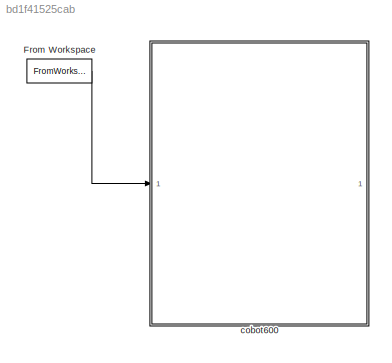
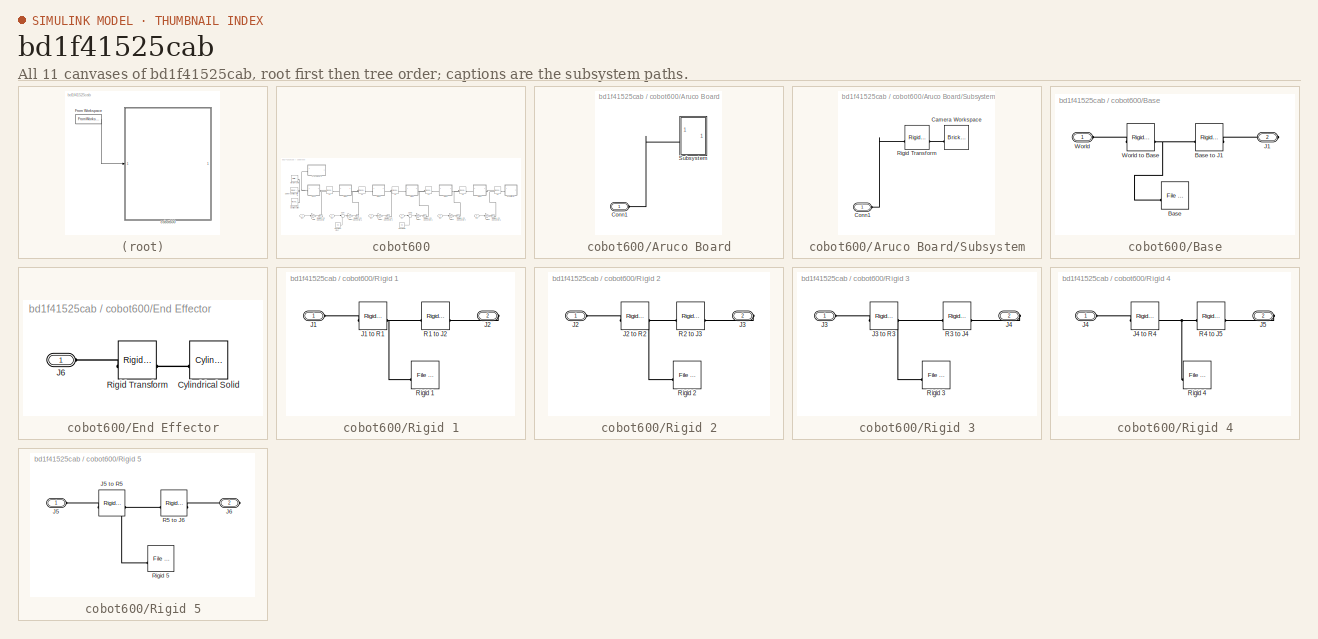
[diagram: thumbnail index - all 11 canvases of the model, root first then tree order]
MODEL slx_bd1f41525cab
KIND model
CONFIG AbsTol = auto
CONFIG EnableMultiTasking = off
CONFIG FixedStep = auto
CONFIG MaxStep = auto
CONFIG MinStep = auto
CONFIG RelTol = 1e-3
CONFIG SampleTimeConstraint = Unconstrained
CONFIG SolverName = VariableStepAuto
CONFIG StartTime = 0.0
CONFIG StopTime = 20
BLOCK [FromWorkspace] From Workspace
  VariableName = simin
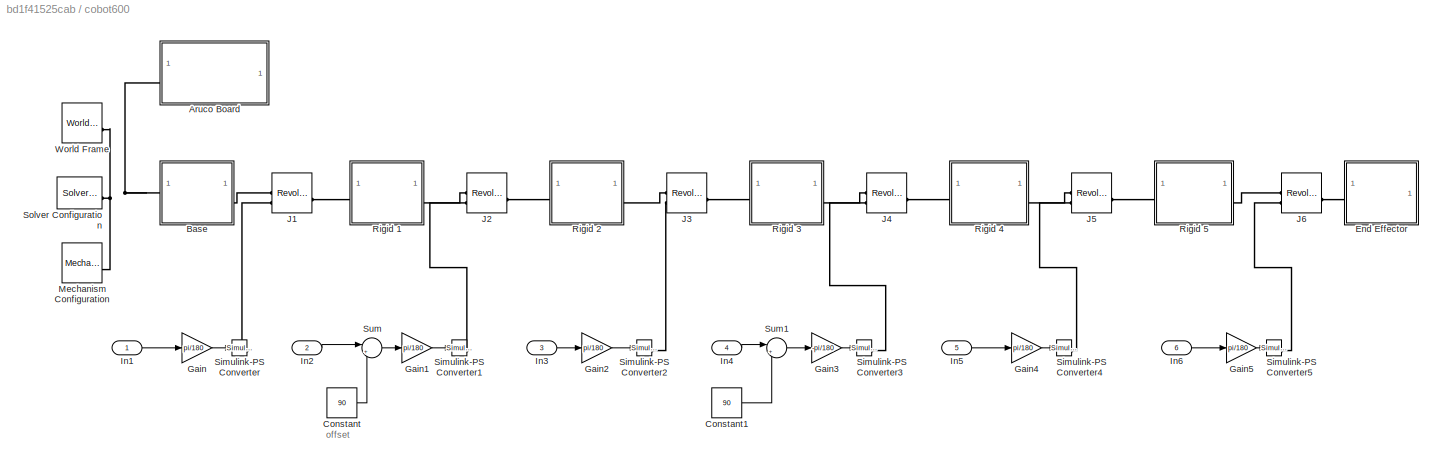
BLOCK [SubSystem] cobot600
BLOCK [SubSystem] cobot600/Aruco Board
BLOCK [PMIOPort] cobot600/Aruco Board/Conn1
  Side = Left
BLOCK [SubSystem] cobot600/Aruco Board/Subsystem
BLOCK [Reference] cobot600/Aruco Board/Subsystem/Camera Workspace  REF=sm_lib/Body Elements/Brick Solid
  SourceBlock = sm_lib/Body Elements/Brick Solid
  SourceType = Brick Solid
BLOCK [PMIOPort] cobot600/Aruco Board/Subsystem/Conn1
  Side = Left
BLOCK [Reference] cobot600/Aruco Board/Subsystem/Rigid Transform  REF=sm_lib/Frames and
Transforms/Rigid
Transform
  SourceBlock = sm_lib/Frames and\nTransforms/Rigid\nTransform
  SourceType = Rigid\nTransform
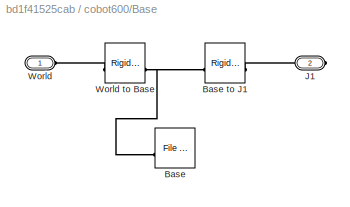
BLOCK [SubSystem] cobot600/Base
BLOCK [Reference] cobot600/Base/Base  REF=sm_lib/Body Elements/File Solid
  SourceBlock = sm_lib/Body Elements/File Solid
  SourceType = File Solid
BLOCK [Reference] cobot600/Base/Base to J1  REF=sm_lib/Frames and
Transforms/Rigid
Transform
  SourceBlock = sm_lib/Frames and\nTransforms/Rigid\nTransform
  SourceType = Rigid\nTransform
BLOCK [PMIOPort] cobot600/Base/J1
  Port = 2
  Side = Right
BLOCK [PMIOPort] cobot600/Base/World
  Side = Left
BLOCK [Reference] cobot600/Base/World to Base  REF=sm_lib/Frames and
Transforms/Rigid
Transform
  SourceBlock = sm_lib/Frames and\nTransforms/Rigid\nTransform
  SourceType = Rigid\nTransform
BLOCK [Constant] cobot600/Constant
  Value = 90
BLOCK [Constant] cobot600/Constant1
  Value = 90
BLOCK [SubSystem] cobot600/End Effector
BLOCK [Reference] cobot600/End Effector/Cylindrical Solid  REF=sm_lib/Body Elements/Cylindrical Solid
  SourceBlock = sm_lib/Body Elements/Cylindrical Solid
  SourceType = Cylindrical Solid
BLOCK [PMIOPort] cobot600/End Effector/J6
  Side = Left
BLOCK [Reference] cobot600/End Effector/Rigid Transform  REF=sm_lib/Frames and
Transforms/Rigid
Transform
  SourceBlock = sm_lib/Frames and\nTransforms/Rigid\nTransform
  SourceType = Rigid\nTransform
BLOCK [Gain] cobot600/Gain
  Gain = pi/180
BLOCK [Gain] cobot600/Gain1
  Gain = pi/180
BLOCK [Gain] cobot600/Gain2
  Gain = pi/180
BLOCK [Gain] cobot600/Gain3
  Gain = -pi/180
BLOCK [Gain] cobot600/Gain4
  Gain = pi/180
BLOCK [Gain] cobot600/Gain5
  Gain = pi/180
BLOCK [Inport] cobot600/In1
BLOCK [Inport] cobot600/In2
  Port = 2
BLOCK [Inport] cobot600/In3
  Port = 3
BLOCK [Inport] cobot600/In4
  Port = 4
BLOCK [Inport] cobot600/In5
  Port = 5
BLOCK [Inport] cobot600/In6
  Port = 6
BLOCK [Reference] cobot600/J1  REF=sm_lib/Joints/Revolute Joint
  SourceBlock = sm_lib/Joints/Revolute Joint
  SourceType = Revolute Joint
BLOCK [Reference] cobot600/J2  REF=sm_lib/Joints/Revolute Joint
  SourceBlock = sm_lib/Joints/Revolute Joint
  SourceType = Revolute Joint
BLOCK [Reference] cobot600/J3  REF=sm_lib/Joints/Revolute Joint
  SourceBlock = sm_lib/Joints/Revolute Joint
  SourceType = Revolute Joint
BLOCK [Reference] cobot600/J4  REF=sm_lib/Joints/Revolute Joint
  SourceBlock = sm_lib/Joints/Revolute Joint
  SourceType = Revolute Joint
BLOCK [Reference] cobot600/J5  REF=sm_lib/Joints/Revolute Joint
  SourceBlock = sm_lib/Joints/Revolute Joint
  SourceType = Revolute Joint
BLOCK [Reference] cobot600/J6  REF=sm_lib/Joints/Revolute Joint
  SourceBlock = sm_lib/Joints/Revolute Joint
  SourceType = Revolute Joint
BLOCK [Reference] cobot600/Mechanism Configuration  REF=sm_lib/Utilities/Mechanism
Configuration
  SourceBlock = sm_lib/Utilities/Mechanism\nConfiguration
  SourceType = Mechanism\nConfiguration
BLOCK [SubSystem] cobot600/Rigid 1
BLOCK [PMIOPort] cobot600/Rigid 1/J1
  Side = Left
BLOCK [Reference] cobot600/Rigid 1/J1 to R1  REF=sm_lib/Frames and
Transforms/Rigid
Transform
  SourceBlock = sm_lib/Frames and\nTransforms/Rigid\nTransform
  SourceType = Rigid\nTransform
BLOCK [PMIOPort] cobot600/Rigid 1/J2
  Port = 2
  Side = Right
BLOCK [Reference] cobot600/Rigid 1/R1 to J2  REF=sm_lib/Frames and
Transforms/Rigid
Transform
  SourceBlock = sm_lib/Frames and\nTransforms/Rigid\nTransform
  SourceType = Rigid\nTransform
BLOCK [Reference] cobot600/Rigid 1/Rigid 1  REF=sm_lib/Body Elements/File Solid
  SourceBlock = sm_lib/Body Elements/File Solid
  SourceType = File Solid
BLOCK [SubSystem] cobot600/Rigid 2
BLOCK [PMIOPort] cobot600/Rigid 2/J2
  Side = Left
BLOCK [Reference] cobot600/Rigid 2/J2 to R2  REF=sm_lib/Frames and
Transforms/Rigid
Transform
  SourceBlock = sm_lib/Frames and\nTransforms/Rigid\nTransform
  SourceType = Rigid\nTransform
BLOCK [PMIOPort] cobot600/Rigid 2/J3
  Port = 2
  Side = Right
BLOCK [Reference] cobot600/Rigid 2/R2 to J3  REF=sm_lib/Frames and
Transforms/Rigid
Transform
  SourceBlock = sm_lib/Frames and\nTransforms/Rigid\nTransform
  SourceType = Rigid\nTransform
BLOCK [Reference] cobot600/Rigid 2/Rigid 2  REF=sm_lib/Body Elements/File Solid
  SourceBlock = sm_lib/Body Elements/File Solid
  SourceType = File Solid
BLOCK [SubSystem] cobot600/Rigid 3
BLOCK [PMIOPort] cobot600/Rigid 3/J3
  Side = Left
BLOCK [Reference] cobot600/Rigid 3/J3 to R3  REF=sm_lib/Frames and
Transforms/Rigid
Transform
  SourceBlock = sm_lib/Frames and\nTransforms/Rigid\nTransform
  SourceType = Rigid\nTransform
BLOCK [PMIOPort] cobot600/Rigid 3/J4
  Port = 2
  Side = Right
BLOCK [Reference] cobot600/Rigid 3/R3 to J4  REF=sm_lib/Frames and
Transforms/Rigid
Transform
  SourceBlock = sm_lib/Frames and\nTransforms/Rigid\nTransform
  SourceType = Rigid\nTransform
BLOCK [Reference] cobot600/Rigid 3/Rigid 3  REF=sm_lib/Body Elements/File Solid
  SourceBlock = sm_lib/Body Elements/File Solid
  SourceType = File Solid
BLOCK [SubSystem] cobot600/Rigid 4
BLOCK [PMIOPort] cobot600/Rigid 4/J4
  Side = Left
BLOCK [Reference] cobot600/Rigid 4/J4 to R4  REF=sm_lib/Frames and
Transforms/Rigid
Transform
  SourceBlock = sm_lib/Frames and\nTransforms/Rigid\nTransform
  SourceType = Rigid\nTransform
BLOCK [PMIOPort] cobot600/Rigid 4/J5
  Port = 2
  Side = Right
BLOCK [Reference] cobot600/Rigid 4/R4 to J5  REF=sm_lib/Frames and
Transforms/Rigid
Transform
  SourceBlock = sm_lib/Frames and\nTransforms/Rigid\nTransform
  SourceType = Rigid\nTransform
BLOCK [Reference] cobot600/Rigid 4/Rigid 4  REF=sm_lib/Body Elements/File Solid
  SourceBlock = sm_lib/Body Elements/File Solid
  SourceType = File Solid
BLOCK [SubSystem] cobot600/Rigid 5
BLOCK [PMIOPort] cobot600/Rigid 5/J5
  Side = Left
BLOCK [Reference] cobot600/Rigid 5/J5 to R5  REF=sm_lib/Frames and
Transforms/Rigid
Transform
  SourceBlock = sm_lib/Frames and\nTransforms/Rigid\nTransform
  SourceType = Rigid\nTransform
BLOCK [PMIOPort] cobot600/Rigid 5/J6
  Port = 2
  Side = Right
BLOCK [Reference] cobot600/Rigid 5/R5 to J6  REF=sm_lib/Frames and
Transforms/Rigid
Transform
  SourceBlock = sm_lib/Frames and\nTransforms/Rigid\nTransform
  SourceType = Rigid\nTransform
BLOCK [Reference] cobot600/Rigid 5/Rigid 5  REF=sm_lib/Body Elements/File Solid
  SourceBlock = sm_lib/Body Elements/File Solid
  SourceType = File Solid
BLOCK [Reference] cobot600/Simulink-PS Converter  REF=nesl_utility/Simulink-PS
Converter
  SourceBlock = nesl_utility/Simulink-PS\nConverter
  SourceType = Simulink-PS\nConverter
BLOCK [Reference] cobot600/Simulink-PS Converter1  REF=nesl_utility/Simulink-PS
Converter
  SourceBlock = nesl_utility/Simulink-PS\nConverter
  SourceType = Simulink-PS\nConverter
BLOCK [Reference] cobot600/Simulink-PS Converter2  REF=nesl_utility/Simulink-PS
Converter
  SourceBlock = nesl_utility/Simulink-PS\nConverter
  SourceType = Simulink-PS\nConverter
BLOCK [Reference] cobot600/Simulink-PS Converter3  REF=nesl_utility/Simulink-PS
Converter
  SourceBlock = nesl_utility/Simulink-PS\nConverter
  SourceType = Simulink-PS\nConverter
BLOCK [Reference] cobot600/Simulink-PS Converter4  REF=nesl_utility/Simulink-PS
Converter
  SourceBlock = nesl_utility/Simulink-PS\nConverter
  SourceType = Simulink-PS\nConverter
BLOCK [Reference] cobot600/Simulink-PS Converter5  REF=nesl_utility/Simulink-PS
Converter
  SourceBlock = nesl_utility/Simulink-PS\nConverter
  SourceType = Simulink-PS\nConverter
BLOCK [Reference] cobot600/Solver Configuration  REF=nesl_utility/Solver
Configuration
  SourceBlock = nesl_utility/Solver\nConfiguration
  SourceType = Solver\nConfiguration
BLOCK [Sum] cobot600/Sum
  Inputs = |++
BLOCK [Sum] cobot600/Sum1
  Inputs = |++
BLOCK [Reference] cobot600/World Frame  REF=sm_lib/Frames and
Transforms/World Frame
  SourceBlock = sm_lib/Frames and\nTransforms/World Frame
  SourceType = World Frame
ANNOTATION cobot600: offset
LINE From Workspace:1 -> cobot600:1
LINE cobot600/Constant1:1 -> cobot600/Sum1:2
LINE cobot600/Constant:1 -> cobot600/Sum:2
LINE cobot600/Gain1:1 -> cobot600/Simulink-PS Converter1:1
LINE cobot600/Gain2:1 -> cobot600/Simulink-PS Converter2:1
LINE cobot600/Gain3:1 -> cobot600/Simulink-PS Converter3:1
LINE cobot600/Gain4:1 -> cobot600/Simulink-PS Converter4:1
LINE cobot600/Gain5:1 -> cobot600/Simulink-PS Converter5:1
LINE cobot600/Gain:1 -> cobot600/Simulink-PS Converter:1
LINE cobot600/In1:1 -> cobot600/Gain:1
LINE cobot600/In2:1 -> cobot600/Sum:1
LINE cobot600/In3:1 -> cobot600/Gain2:1
LINE cobot600/In4:1 -> cobot600/Sum1:1
LINE cobot600/In5:1 -> cobot600/Gain4:1
LINE cobot600/In6:1 -> cobot600/Gain5:1
LINE cobot600/Sum1:1 -> cobot600/Gain3:1
LINE cobot600/Sum:1 -> cobot600/Gain1:1
PLINE cobot600/Aruco Board/Conn1:RConn1 -- cobot600/Aruco Board/Subsystem:LConn1
PLINE cobot600/Aruco Board/Subsystem/Camera Workspace:RConn1 -- cobot600/Aruco Board/Subsystem/Rigid Transform:RConn1
PLINE cobot600/Aruco Board/Subsystem/Conn1:RConn1 -- cobot600/Aruco Board/Subsystem/Rigid Transform:LConn1
PNET net1: cobot600/Aruco Board:LConn1 -- cobot600/Base:LConn1 -- cobot600/Mechanism Configuration:RConn1 -- cobot600/Solver Configuration:RConn1 -- cobot600/World Frame:RConn1
PNET net2: cobot600/Base/Base to J1:LConn1 -- cobot600/Base/Base:RConn1 -- cobot600/Base/World to Base:RConn1
PLINE cobot600/Base/Base to J1:RConn1 -- cobot600/Base/J1:RConn1
PLINE cobot600/Base/World to Base:LConn1 -- cobot600/Base/World:RConn1
PLINE cobot600/Base:RConn1 -- cobot600/J1:LConn1
PLINE cobot600/End Effector/Cylindrical Solid:RConn1 -- cobot600/End Effector/Rigid Transform:RConn1
PLINE cobot600/End Effector/J6:RConn1 -- cobot600/End Effector/Rigid Transform:LConn1
PLINE cobot600/End Effector:LConn1 -- cobot600/J6:RConn1
PLINE cobot600/J1:LConn2 -- cobot600/Simulink-PS Converter:RConn1
PLINE cobot600/J1:RConn1 -- cobot600/Rigid 1:LConn1
PLINE cobot600/J2:LConn1 -- cobot600/Rigid 1:RConn1
PLINE cobot600/J2:LConn2 -- cobot600/Simulink-PS Converter1:RConn1
PLINE cobot600/J2:RConn1 -- cobot600/Rigid 2:LConn1
PLINE cobot600/J3:LConn1 -- cobot600/Rigid 2:RConn1
PLINE cobot600/J3:LConn2 -- cobot600/Simulink-PS Converter2:RConn1
PLINE cobot600/J3:RConn1 -- cobot600/Rigid 3:LConn1
PLINE cobot600/J4:LConn1 -- cobot600/Rigid 3:RConn1
PLINE cobot600/J4:LConn2 -- cobot600/Simulink-PS Converter3:RConn1
PLINE cobot600/J4:RConn1 -- cobot600/Rigid 4:LConn1
PLINE cobot600/J5:LConn1 -- cobot600/Rigid 4:RConn1
PLINE cobot600/J5:LConn2 -- cobot600/Simulink-PS Converter4:RConn1
PLINE cobot600/J5:RConn1 -- cobot600/Rigid 5:LConn1
PLINE cobot600/J6:LConn1 -- cobot600/Rigid 5:RConn1
PLINE cobot600/J6:LConn2 -- cobot600/Simulink-PS Converter5:RConn1
PLINE cobot600/Rigid 1/J1 to R1:LConn1 -- cobot600/Rigid 1/J1:RConn1
PNET net3: cobot600/Rigid 1/J1 to R1:RConn1 -- cobot600/Rigid 1/R1 to J2:LConn1 -- cobot600/Rigid 1/Rigid 1:RConn1
PLINE cobot600/Rigid 1/J2:RConn1 -- cobot600/Rigid 1/R1 to J2:RConn1
PLINE cobot600/Rigid 2/J2 to R2:LConn1 -- cobot600/Rigid 2/J2:RConn1
PNET net4: cobot600/Rigid 2/J2 to R2:RConn1 -- cobot600/Rigid 2/R2 to J3:LConn1 -- cobot600/Rigid 2/Rigid 2:RConn1
PLINE cobot600/Rigid 2/J3:RConn1 -- cobot600/Rigid 2/R2 to J3:RConn1
PLINE cobot600/Rigid 3/J3 to R3:LConn1 -- cobot600/Rigid 3/J3:RConn1
PNET net5: cobot600/Rigid 3/J3 to R3:RConn1 -- cobot600/Rigid 3/R3 to J4:LConn1 -- cobot600/Rigid 3/Rigid 3:RConn1
PLINE cobot600/Rigid 3/J4:RConn1 -- cobot600/Rigid 3/R3 to J4:RConn1
PLINE cobot600/Rigid 4/J4 to R4:LConn1 -- cobot600/Rigid 4/J4:RConn1
PNET net6: cobot600/Rigid 4/J4 to R4:RConn1 -- cobot600/Rigid 4/R4 to J5:LConn1 -- cobot600/Rigid 4/Rigid 4:RConn1
PLINE cobot600/Rigid 4/J5:RConn1 -- cobot600/Rigid 4/R4 to J5:RConn1
PLINE cobot600/Rigid 5/J5 to R5:LConn1 -- cobot600/Rigid 5/J5:RConn1
PNET net7: cobot600/Rigid 5/J5 to R5:RConn1 -- cobot600/Rigid 5/R5 to J6:LConn1 -- cobot600/Rigid 5/Rigid 5:RConn1
PLINE cobot600/Rigid 5/J6:RConn1 -- cobot600/Rigid 5/R5 to J6:RConn1
note: PNET lines group multi-terminal physical nets as a canonical sorted terminal list (undirected conserving connections); 2-terminal nets keep the pairwise PLINE form
